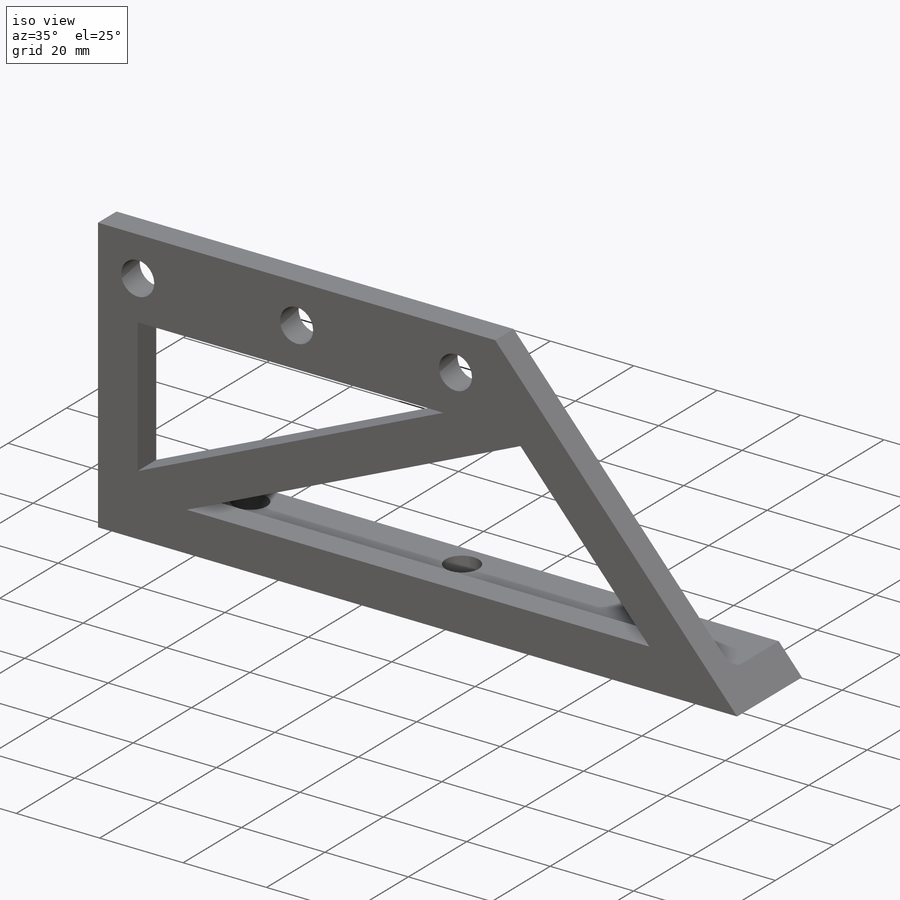
[diagram: iso view]
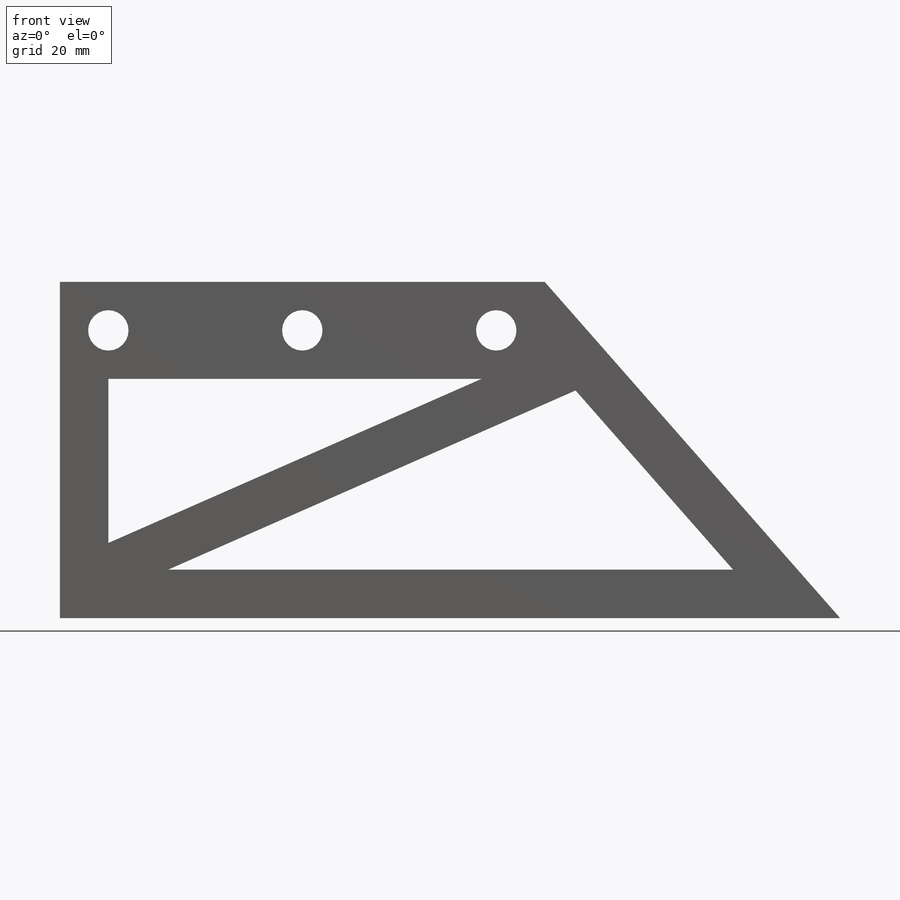
[diagram: front view]
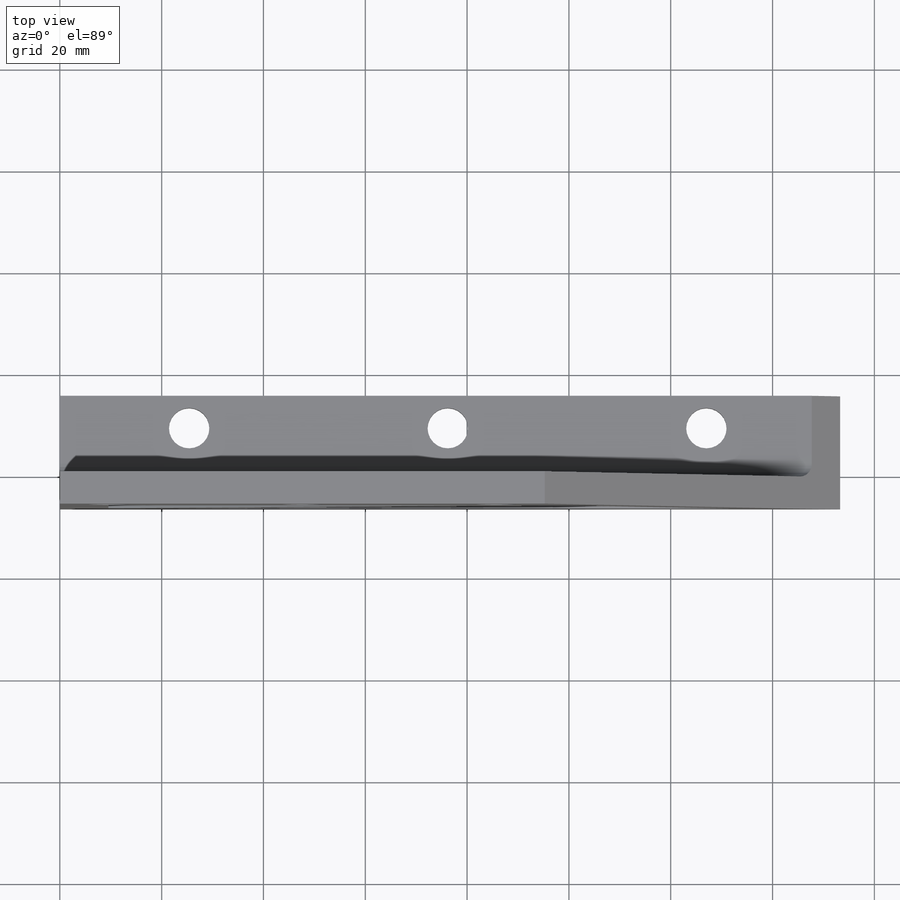
[diagram: top view]
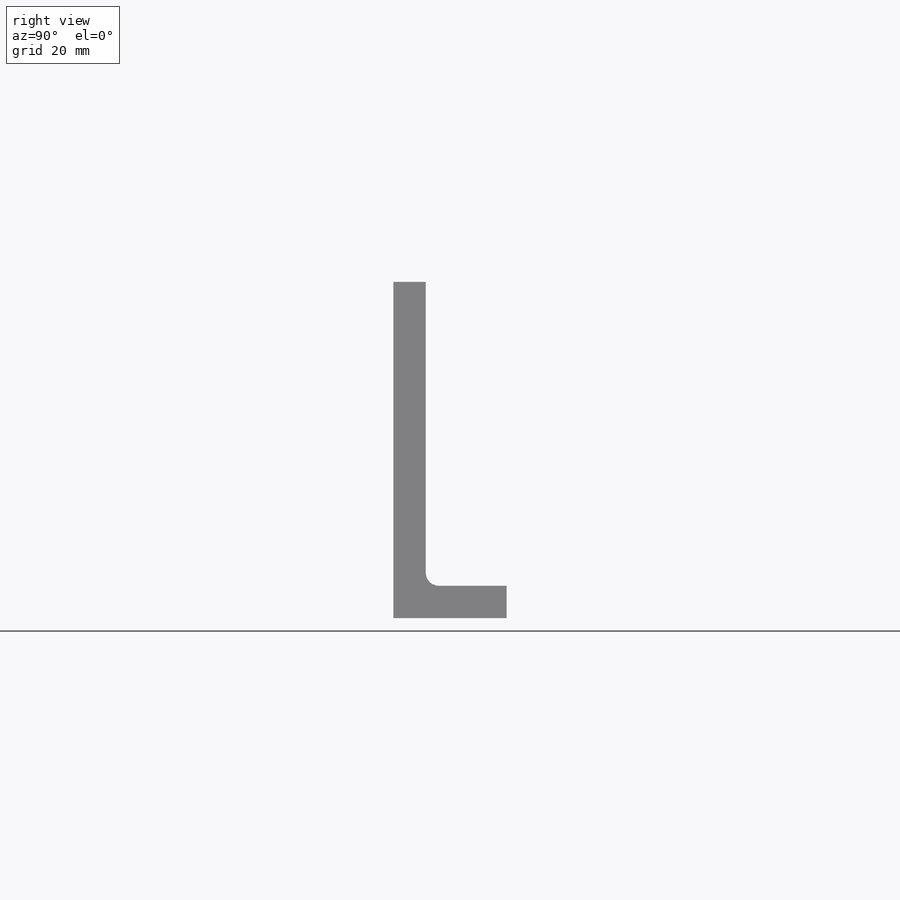
[diagram: right view]
SOLIDWORKS PART (.sldprt)
format: sldprt  version: not decoded by parser v0  size: 216,576 bytes
history: native  units: mm
features: sketch x3, extrude x2, material x1, fillet x1, cut_extrude x1 (+13 scaffold rows collapsed)
feature tree (21):
  scaffold x13  (default folders/planes/origin — collapsed)
  material  "Material <not specified>"
  sketch  "Sketch1"  dims[c1.D1=7.9375mm c1.D2=38.1mm c1.D3=38.1mm c1.D4=9.525mm c1.D5=9.525mm c1.D6=9.525mm c1.D7=9.525mm c1.D8=9.525mm c1.D9=9.525mm c1.D10=~68.434102mm c1.D11=9.525mm c2.D10=56.515mm]
  extrude  "Boss-Extrude1"  Depth=6.35mm
  sketch  "Sketch2"  dims[c1.D4=7.9375mm c1.D1=50.8mm c1.D2=50.8mm c1.D3=15.875mm c1.D5=6.35mm c1.D6=25.4mm c1.D7=15.875mm c2.D5=6.35mm c2.D8=15.875mm c3.D5=~154.02291mm c3.D3=25.4mm c4.D5=6.35mm]
  extrude  "Boss-Extrude2"  Depth=6.35mm
  fillet  "Fillet1"  Radius=2.54mm
  sketch  "Sketch3"
  cut_extrude  "Cut-Extrude1"  [1 undecoded]
decode coverage: 5 of 7 modeling features carry decoded parameters
note: ~ marks probable driven/reference dimensions
note: 1 parameter value undecoded
note: suppression state not decoded; provenance and decode notes live in map.json
